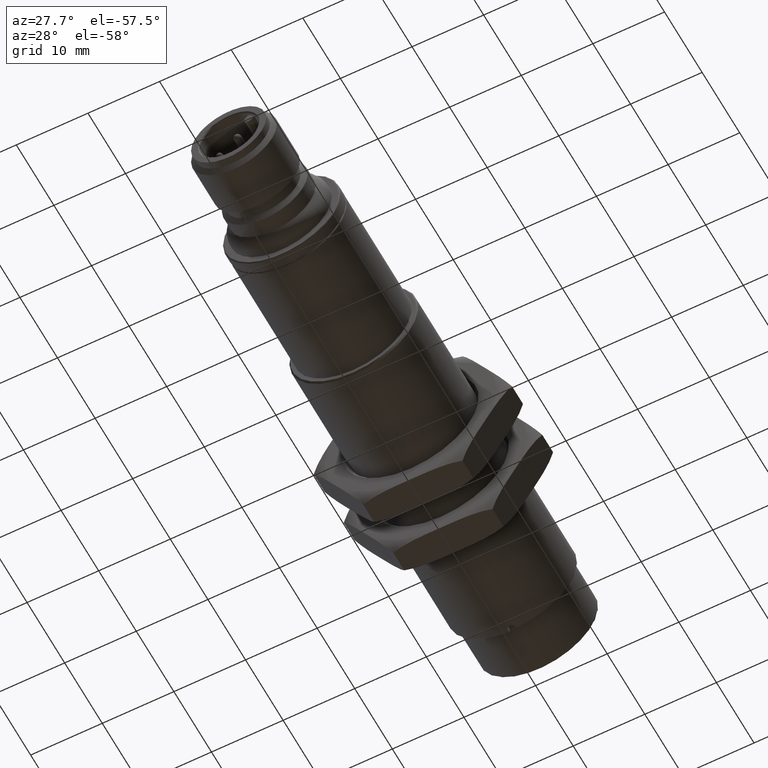
[diagram: clean part render]
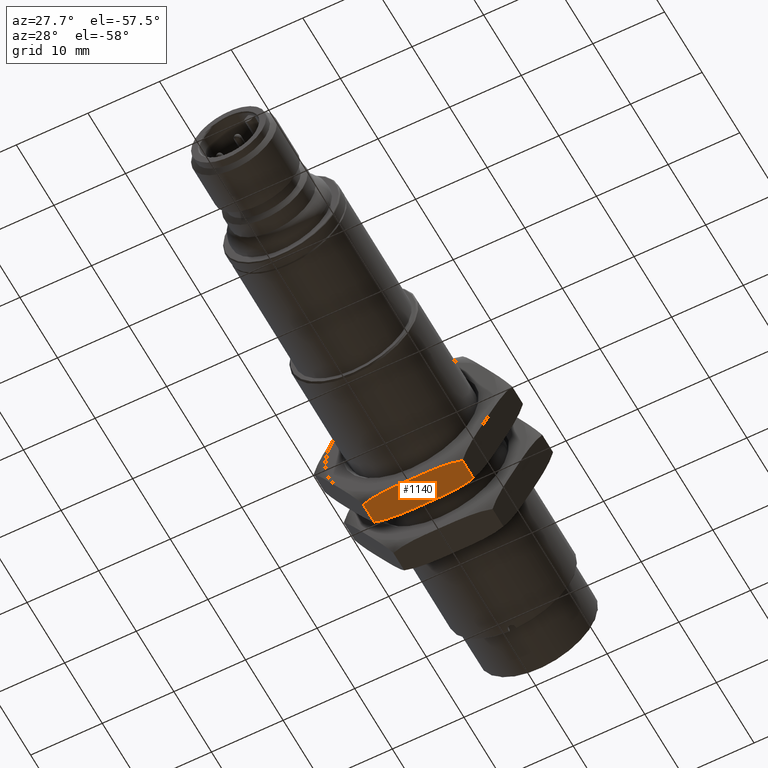
[diagram: same view with one face highlighted and labeled with its STEP entity id]
A machine part, auxiliary view. The second image highlights one B-rep face of the part: STEP entity #1140.
In plain terms, the highlighted planar face has unit normal (0, 0, 1).
Its self-contained STEP definition (entity closure, byte-faithful):
#7 = CARTESIAN_POINT ( 'NONE',  ( -0.04646973941410967313, 0.2687659276098816052, -0.4758734118880949548 ) ) ;
#63 = B_SPLINE_CURVE_WITH_KNOTS ( 'NONE', 3,
 ( #305, #3307, #2939, #4331, #2961, #3677, #2980, #4378, #1265, #4035, #3697, #259, #3004, #4399, #1670, #4157, #2382, #2022, #3823, #728, #704, #7, #2457 ),
 .UNSPECIFIED., .F., .F.,
 ( 4, 2, 2, 1, 2, 2, 2, 2, 2, 2, 2, 4 ),
 ( 0.000000000000000000, 0.1249999999999998890, 0.1874999999999998335, 0.2187500000000000278, 0.2343749999999998890, 0.2499999999999997780, 0.3749999999999995559, 0.4374999999999994449, 0.4687499999999993894, 0.4999999999999992784, 0.7499999999999995559, 1.000000000000000000 ),
 .UNSPECIFIED. ) ;
#131 = B_SPLINE_CURVE_WITH_KNOTS ( 'NONE', 3,
 ( #570, #1925, #3313, #1250, #226, #2636, #1045, #2323, #3126, #2757, #4121, #1310, #2416, #3419, #1375, #3767, #1654, #4473, #959, #710, #3722 ),
 .UNSPECIFIED., .F., .F.,
 ( 4, 2, 2, 2, 2, 2, 2, 1, 2, 2, 4 ),
 ( 0.000000000000000000, 0.2499999999999986122, 0.3749999999999978351, 0.4374999999999973910, 0.4999999999999970024, 0.6249999999999962252, 0.6874999999999958922, 0.7187499999999956701, 0.7343749999999957812, 0.7499999999999958922, 1.000000000000000000 ),
 .UNSPECIFIED. ) ;
#163 = ORIENTED_EDGE ( 'NONE', *, *, #1537, .F. ) ;
#181 = CARTESIAN_POINT ( 'NONE',  ( -0.06709584475610130827, 0.4261487126088744359, -0.4758734972580100364 ) ) ;
#226 = CARTESIAN_POINT ( 'NONE',  ( 0.1086588139046280738, 0.2694436107210309017, -0.4758707113770376806 ) ) ;
#234 = CARTESIAN_POINT ( 'NONE',  ( 0.1606657604758405800, 0.4232523728152694509, -0.4758724957003556133 ) ) ;
#259 = CARTESIAN_POINT ( 'NONE',  ( -0.1918098235597389123, 0.2743750452039738774, -0.4758702141019756082 ) ) ;
#271 = LINE ( 'NONE', #4345, #2366 ) ;
#305 = CARTESIAN_POINT ( 'NONE',  ( -0.2727639067037578857, 0.2906373679305283564, -0.4758734118880952879 ) ) ;
#415 = VECTOR ( 'NONE', #4177, 39.37007874015748143 ) ;
#472 = VERTEX_POINT ( 'NONE', #2522 ) ;
#526 = CARTESIAN_POINT ( 'NONE',  ( -0.02567950825656244510, 0.4262216651952197566, -0.4758734118880952879 ) ) ;
#532 = CARTESIAN_POINT ( 'NONE',  ( 0.2330594514784427029, 0.4143534328530462663, -0.4758707513784913856 ) ) ;
#546 = CARTESIAN_POINT ( 'NONE',  ( -0.2727639067037574971, 0.4043256474992811267, -0.4758734118880952879 ) ) ;
#570 = CARTESIAN_POINT ( 'NONE',  ( 0.02567950825658346647, 0.2687413502345897820, -0.4758734118880952879 ) ) ;
#575 = FACE_OUTER_BOUND ( 'NONE', #1196, .T. ) ;
#585 = EDGE_CURVE ( 'NONE', #2958, #1976, #1462, .T. ) ;
#614 = VERTEX_POINT ( 'NONE', #3604 ) ;
#634 = CARTESIAN_POINT ( 'NONE',  ( -0.2727639067037578857, 0.2687413502345897820, -0.4758734118880952879 ) ) ;
#678 = EDGE_CURVE ( 'NONE', #2058, #2958, #1011, .T. ) ;
#704 = CARTESIAN_POINT ( 'NONE',  ( -0.06711319420462699692, 0.2688141648581643950, -0.4758733249428757639 ) ) ;
#710 = CARTESIAN_POINT ( 'NONE',  ( 0.2534592381980899645, 0.2845092672232170661, -0.4758734118880955655 ) ) ;
#728 = CARTESIAN_POINT ( 'NONE',  ( -0.1087806650677682757, 0.2693836662093226364, -0.4758734988333150895 ) ) ;
#749 = CARTESIAN_POINT ( 'NONE',  ( -0.02567950825656244510, 0.4262216651952197566, -0.4758734118880952879 ) ) ;
#808 = CARTESIAN_POINT ( 'NONE',  ( 0.1918098235596982781, 0.4205879702258214503, -0.4758702141020457188 ) ) ;
#851 = CARTESIAN_POINT ( 'NONE',  ( -0.1913899664294545777, 0.4205747950100678367, -0.4758709107747379763 ) ) ;
#857 = CARTESIAN_POINT ( 'NONE',  ( 0.2214053349003846927, 0.4164412716387022040, -0.4758726714343453623 ) ) ;
#875 = CARTESIAN_POINT ( 'NONE',  ( -0.2330192571571119697, 0.4148174332184160762, -0.4758733120149470364 ) ) ;
#903 = CARTESIAN_POINT ( 'NONE',  ( 0.2381720422805057580, 0.4133273894542619509, -0.4758701223751497511 ) ) ;
#922 = CARTESIAN_POINT ( 'NONE',  ( -0.1604643549079249887, 0.4233205354464166792, -0.4758733673994327562 ) ) ;
#959 = CARTESIAN_POINT ( 'NONE',  ( 0.2330192571556768677, 0.2801455822110985316, -0.4758733120146942386 ) ) ;
#994 = LINE ( 'NONE', #4092, #415 ) ;
#1011 = LINE ( 'NONE', #1724, #3458 ) ;
#1045 = CARTESIAN_POINT ( 'NONE',  ( 0.1293281229903242291, 0.2700890065678204222, -0.4758712137285325272 ) ) ;
#1140 = ADVANCED_FACE ( 'NONE', ( #575 ), #1212, .F. ) ;
#1145 = ORIENTED_EDGE ( 'NONE', *, *, #585, .F. ) ;
#1148 = CARTESIAN_POINT ( 'NONE',  ( 0.06711319420636510658, 0.4261488505716382602, -0.4758733249426469469 ) ) ;
#1150 = EDGE_CURVE ( 'NONE', #472, #3288, #271, .T. ) ;
#1196 = EDGE_LOOP ( 'NONE', ( #163, #1387, #1145, #1218, #3780, #1955, #2406, #3909 ) ) ;
#1212 = PLANE ( 'NONE',  #3971 ) ;
#1213 = CARTESIAN_POINT ( 'NONE',  ( 0.2631880547543332116, 0.4073654192046161082, -0.4758734118880944552 ) ) ;
#1214 = LINE ( 'NONE', #2908, #1898 ) ;
#1218 = ORIENTED_EDGE ( 'NONE', *, *, #678, .F. ) ;
#1250 = CARTESIAN_POINT ( 'NONE',  ( 0.09830553385956551649, 0.2692403075970751236, -0.4758733692030945872 ) ) ;
#1258 = CARTESIAN_POINT ( 'NONE',  ( -0.02567950825657815128, 0.2687413502345897820, -0.4758734118880952879 ) ) ;
#1265 = CARTESIAN_POINT ( 'NONE',  ( -0.2148472301007323670, 0.2774815356313294346, -0.4758733546107024037 ) ) ;
#1276 = DIRECTION ( 'NONE',  ( 0.000000000000000000, 1.000000000000000000, 0.000000000000000000 ) ) ;
#1310 = CARTESIAN_POINT ( 'NONE',  ( 0.1862699493225018765, 0.2738468278922197574, -0.4758703244351742967 ) ) ;
#1375 = CARTESIAN_POINT ( 'NONE',  ( 0.2028510139626773234, 0.2757750787315870755, -0.4758727133404214160 ) ) ;
#1387 = ORIENTED_EDGE ( 'NONE', *, *, #4184, .T. ) ;
#1436 = EDGE_CURVE ( 'NONE', #614, #2058, #131, .T. ) ;
#1462 = B_SPLINE_CURVE_WITH_KNOTS ( 'NONE', 3,
 ( #4003, #1213, #2881, #903, #532, #1932, #857, #3229, #1550, #3912, #3322, #808, #1911, #3298, #3276, #234, #1599, #1504, #2930, #4249, #1148, #1527, #2174 ),
 .UNSPECIFIED., .F., .F.,
 ( 4, 2, 2, 1, 2, 2, 2, 2, 2, 2, 2, 4 ),
 ( 0.000000000000000000, 0.1250000000000014710, 0.1875000000000024980, 0.2187500000000031364, 0.2343750000000034972, 0.2500000000000038858, 0.3750000000000041633, 0.4375000000000041633, 0.4687500000000038858, 0.5000000000000036637, 0.7500000000000017764, 1.000000000000000000 ),
 .UNSPECIFIED. ) ;
#1496 = CARTESIAN_POINT ( 'NONE',  ( -0.04645346502616904544, 0.4261971070588548849, -0.4758734118880948438 ) ) ;
#1504 = CARTESIAN_POINT ( 'NONE',  ( 0.1527479835564067578, 0.4237518973278183165, -0.4758734230892054384 ) ) ;
#1527 = CARTESIAN_POINT ( 'NONE',  ( 0.04646973941583536910, 0.4261970878199257684, -0.4758734118880945108 ) ) ;
#1537 = EDGE_CURVE ( 'NONE', #1775, #3288, #3907, .T. ) ;
#1545 = CARTESIAN_POINT ( 'NONE',  ( -0.2103806306954447702, 0.4181464275075642001, -0.4758734181301662036 ) ) ;
#1550 = CARTESIAN_POINT ( 'NONE',  ( 0.2148472301006681129, 0.4174814797984941483, -0.4758733546106901358 ) ) ;
#1599 = CARTESIAN_POINT ( 'NONE',  ( 0.1554226949836862992, 0.4235910941522424422, -0.4758731741822120331 ) ) ;
#1621 = DIRECTION ( 'NONE',  ( 1.000000000000000000, 0.000000000000000000, 0.000000000000000000 ) ) ;
#1654 = CARTESIAN_POINT ( 'NONE',  ( 0.2091848011543381847, 0.2766455155219632589, -0.4758733576903566576 ) ) ;
#1670 = CARTESIAN_POINT ( 'NONE',  ( -0.1632808797344250384, 0.2718911866283678092, -0.4758720663840215193 ) ) ;
#1703 = DIRECTION ( 'NONE',  ( 0.000000000000000000, 1.000000000000000000, 0.000000000000000000 ) ) ;
#1724 = CARTESIAN_POINT ( 'NONE',  ( 0.2727639067037633813, 0.2687413502345897820, -0.4758734118880952879 ) ) ;
#1775 = VERTEX_POINT ( 'NONE', #749 ) ;
#1834 = CARTESIAN_POINT ( 'NONE',  ( -0.1990362944278201152, 0.4196662969324371217, -0.4758720769552841623 ) ) ;
#1883 = CARTESIAN_POINT ( 'NONE',  ( -0.2091848011542673802, 0.4183174999078652645, -0.4758733576903261819 ) ) ;
#1898 = VECTOR ( 'NONE', #2293, 39.37007874015748143 ) ;
#1911 = CARTESIAN_POINT ( 'NONE',  ( 0.1763008073991605140, 0.4220597955814024971, -0.4758702682893032887 ) ) ;
#1925 = CARTESIAN_POINT ( 'NONE',  ( 0.04645346502553155538, 0.2687659083709538210, -0.4758734118880953989 ) ) ;
#1932 = CARTESIAN_POINT ( 'NONE',  ( 0.2253044169159937327, 0.4157663482224663865, -0.4758719944933004209 ) ) ;
#1955 = ORIENTED_EDGE ( 'NONE', *, *, #2646, .F. ) ;
#1976 = VERTEX_POINT ( 'NONE', #2408 ) ;
#2022 = CARTESIAN_POINT ( 'NONE',  ( -0.1527479835566992183, 0.2712111181020058215, -0.4758734230891949468 ) ) ;
#2058 = VERTEX_POINT ( 'NONE', #3782 ) ;
#2174 = CARTESIAN_POINT ( 'NONE',  ( 0.02567950825658346647, 0.4262216651952197566, -0.4758734118880952879 ) ) ;
#2217 = CARTESIAN_POINT ( 'NONE',  ( -0.1447435290440798050, 0.4242003563957161272, -0.4758734341324250550 ) ) ;
#2246 = CARTESIAN_POINT ( 'NONE',  ( -0.1086588139033289879, 0.4255194047087964004, -0.4758707113771589725 ) ) ;
#2293 = DIRECTION ( 'NONE',  ( 1.000000000000000000, 0.000000000000000000, 0.000000000000000000 ) ) ;
#2323 = CARTESIAN_POINT ( 'NONE',  ( 0.1396552881086004783, 0.2705186120256313220, -0.4758725755939820501 ) ) ;
#2366 = VECTOR ( 'NONE', #1276, 39.37007874015748143 ) ;
#2382 = CARTESIAN_POINT ( 'NONE',  ( -0.1554226949836959859, 0.2713719212775639322, -0.4758731741821914940 ) ) ;
#2406 = ORIENTED_EDGE ( 'NONE', *, *, #3325, .F. ) ;
#2408 = CARTESIAN_POINT ( 'NONE',  ( 0.02567950825658346647, 0.4262216651952197566, -0.4758734118880952879 ) ) ;
#2416 = CARTESIAN_POINT ( 'NONE',  ( 0.1913899664298047143, 0.2743882204198307972, -0.4758709107749228839 ) ) ;
#2457 = CARTESIAN_POINT ( 'NONE',  ( -0.02567950825657815128, 0.2687413502345897820, -0.4758734118880952879 ) ) ;
#2522 = CARTESIAN_POINT ( 'NONE',  ( -0.2727639067037578857, 0.2906373679305283564, -0.4758734118880952879 ) ) ;
#2545 = VERTEX_POINT ( 'NONE', #1258 ) ;
#2636 = CARTESIAN_POINT ( 'NONE',  ( 0.1241639488626014309, 0.2699076292286865519, -0.4758707068571174092 ) ) ;
#2638 = CARTESIAN_POINT ( 'NONE',  ( -0.09830553385869766903, 0.4257227078327428527, -0.4758733692031376084 ) ) ;
#2646 = EDGE_CURVE ( 'NONE', #2545, #614, #1214, .T. ) ;
#2757 = CARTESIAN_POINT ( 'NONE',  ( 0.1604643549081689602, 0.2716424799834347703, -0.4758733673995935720 ) ) ;
#2881 = CARTESIAN_POINT ( 'NONE',  ( 0.2533270605884538340, 0.4099721428450868732, -0.4758701013983908656 ) ) ;
#2899 = CARTESIAN_POINT ( 'NONE',  ( -0.1708411760987296468, 0.4225726599038197029, -0.4758703086209390976 ) ) ;
#2908 = CARTESIAN_POINT ( 'NONE',  ( -0.2727639067037578857, 0.2687413502345897820, -0.4758734118880952879 ) ) ;
#2930 = CARTESIAN_POINT ( 'NONE',  ( 0.1294572635640887370, 0.4250596107137024071, -0.4758733222792037032 ) ) ;
#2939 = CARTESIAN_POINT ( 'NONE',  ( -0.2533270605888843230, 0.2849908725848436242, -0.4758701013984174000 ) ) ;
#2958 = VERTEX_POINT ( 'NONE', #3926 ) ;
#2961 = CARTESIAN_POINT ( 'NONE',  ( -0.2330594514788338623, 0.2806095825768581964, -0.4758707513785392362 ) ) ;
#2969 = CARTESIAN_POINT ( 'NONE',  ( -0.1862699493221239566, 0.4211161875376813746, -0.4758703244349665185 ) ) ;
#2980 = CARTESIAN_POINT ( 'NONE',  ( -0.2214053349005989935, 0.2785217437911549632, -0.4758726714343794462 ) ) ;
#3004 = CARTESIAN_POINT ( 'NONE',  ( -0.1763008073992020919, 0.2729032198483948291, -0.4758702682892342328 ) ) ;
#3126 = CARTESIAN_POINT ( 'NONE',  ( 0.1447435290439758049, 0.2707626590340733719, -0.4758734341323465622 ) ) ;
#3229 = CARTESIAN_POINT ( 'NONE',  ( 0.2174746463075402647, 0.4170712351212039759, -0.4758731365352469322 ) ) ;
#3246 = CARTESIAN_POINT ( 'NONE',  ( -0.2534592381995584010, 0.4104537482061248466, -0.4758734118880945108 ) ) ;
#3269 = CARTESIAN_POINT ( 'NONE',  ( -0.1396552881078329533, 0.4244444034041946479, -0.4758725755941042856 ) ) ;
#3276 = CARTESIAN_POINT ( 'NONE',  ( 0.1632808797343981988, 0.4230718288014346240, -0.4758720663840668719 ) ) ;
#3288 = VERTEX_POINT ( 'NONE', #4073 ) ;
#3298 = CARTESIAN_POINT ( 'NONE',  ( 0.1711076652134170539, 0.4224937496687087846, -0.4758708783261780817 ) ) ;
#3307 = CARTESIAN_POINT ( 'NONE',  ( -0.2631880547546183169, 0.2875975962252859675, -0.4758734118880956210 ) ) ;
#3313 = CARTESIAN_POINT ( 'NONE',  ( 0.06709584475442005591, 0.2688143028209184493, -0.4758734972580970224 ) ) ;
#3322 = CARTESIAN_POINT ( 'NONE',  ( 0.2020562668473204204, 0.4193804421799640636, -0.4758733634185502437 ) ) ;
#3325 = EDGE_CURVE ( 'NONE', #472, #2545, #63, .T. ) ;
#3365 = DIRECTION ( 'NONE',  ( 0.000000000000000000, 0.000000000000000000, 1.000000000000000000 ) ) ;
#3419 = CARTESIAN_POINT ( 'NONE',  ( 0.1990362944280794633, 0.2752967184974415282, -0.4758720769554142249 ) ) ;
#3458 = VECTOR ( 'NONE', #1703, 39.37007874015748143 ) ;
#3597 = CARTESIAN_POINT ( 'NONE',  ( -0.1293281229891277417, 0.4248740088620113764, -0.4758712137286980060 ) ) ;
#3604 = CARTESIAN_POINT ( 'NONE',  ( 0.02567950825658346647, 0.2687413502345897820, -0.4758734118880952879 ) ) ;
#3621 = CARTESIAN_POINT ( 'NONE',  ( -0.2066529976286469172, 0.4186709843868844927, -0.4758731519058304604 ) ) ;
#3677 = CARTESIAN_POINT ( 'NONE',  ( -0.2253044169162755905, 0.2791966672074081002, -0.4758719944933407775 ) ) ;
#3697 = CARTESIAN_POINT ( 'NONE',  ( -0.2020562668473450951, 0.2755825732498338176, -0.4758733634185028372 ) ) ;
#3722 = CARTESIAN_POINT ( 'NONE',  ( 0.2727639067037633813, 0.2906373679305283564, -0.4758734118880952879 ) ) ;
#3767 = CARTESIAN_POINT ( 'NONE',  ( 0.2066529976287724280, 0.2762920310429594628, -0.4758731519058886916 ) ) ;
#3780 = ORIENTED_EDGE ( 'NONE', *, *, #1436, .F. ) ;
#3782 = CARTESIAN_POINT ( 'NONE',  ( 0.2727639067037633813, 0.2906373679305283564, -0.4758734118880952879 ) ) ;
#3823 = CARTESIAN_POINT ( 'NONE',  ( -0.1294572635617016187, 0.2699034047159891148, -0.4758733222792927986 ) ) ;
#3907 = B_SPLINE_CURVE_WITH_KNOTS ( 'NONE', 3,
 ( #526, #1496, #181, #2638, #2246, #3953, #3597, #3269, #2217, #922, #2899, #2969, #851, #1834, #4291, #3621, #1883, #1545, #875, #3246, #546 ),
 .UNSPECIFIED., .F., .F.,
 ( 4, 2, 2, 2, 2, 2, 2, 1, 2, 2, 4 ),
 ( 0.000000000000000000, 0.2499999999999984457, 0.3749999999999978351, 0.4374999999999976130, 0.4999999999999974465, 0.6249999999999973355, 0.6874999999999974465, 0.7187499999999976685, 0.7343749999999976685, 0.7499999999999976685, 1.000000000000000000 ),
 .UNSPECIFIED. ) ;
#3909 = ORIENTED_EDGE ( 'NONE', *, *, #1150, .T. ) ;
#3912 = CARTESIAN_POINT ( 'NONE',  ( 0.2134785542346128995, 0.4176893597794903989, -0.4758734179467876135 ) ) ;
#3926 = CARTESIAN_POINT ( 'NONE',  ( 0.2727639067037637699, 0.4043256474992811267, -0.4758734118880945108 ) ) ;
#3953 = CARTESIAN_POINT ( 'NONE',  ( -0.1241639488612990283, 0.4250553862011454687, -0.4758707068572810006 ) ) ;
#3971 = AXIS2_PLACEMENT_3D ( 'NONE', #634, #3365, #1621 ) ;
#4003 = CARTESIAN_POINT ( 'NONE',  ( 0.2727639067037637699, 0.4043256474992811267, -0.4758734118880945108 ) ) ;
#4035 = CARTESIAN_POINT ( 'NONE',  ( -0.2134785542346040177, 0.2772736556503201388, -0.4758734179467939973 ) ) ;
#4073 = CARTESIAN_POINT ( 'NONE',  ( -0.2727639067037574971, 0.4043256474992811267, -0.4758734118880952879 ) ) ;
#4092 = CARTESIAN_POINT ( 'NONE',  ( -0.2727639067037578857, 0.4262216651952197566, -0.4758734118880952879 ) ) ;
#4121 = CARTESIAN_POINT ( 'NONE',  ( 0.1708411760991007666, 0.2723903555260680509, -0.4758703086211615862 ) ) ;
#4157 = CARTESIAN_POINT ( 'NONE',  ( -0.1606657604758621460, 0.2717106426145344256, -0.4758724957003176992 ) ) ;
#4177 = DIRECTION ( 'NONE',  ( 1.000000000000000000, 0.000000000000000000, 0.000000000000000000 ) ) ;
#4184 = EDGE_CURVE ( 'NONE', #1775, #1976, #994, .T. ) ;
#4249 = CARTESIAN_POINT ( 'NONE',  ( 0.1087806650660419622, 0.4255793492204939521, -0.4758734988335424076 ) ) ;
#4291 = CARTESIAN_POINT ( 'NONE',  ( -0.2028510139624764286, 0.4191879366982779187, -0.4758727133403241050 ) ) ;
#4331 = CARTESIAN_POINT ( 'NONE',  ( -0.2381720422809343596, 0.2816356259756557234, -0.4758701223751947706 ) ) ;
#4345 = CARTESIAN_POINT ( 'NONE',  ( -0.2727639067037578857, 0.2687413502345897820, -0.4758734118880952879 ) ) ;
#4378 = CARTESIAN_POINT ( 'NONE',  ( -0.2174746463076671077, 0.2778917803086335958, -0.4758731365352685816 ) ) ;
#4399 = CARTESIAN_POINT ( 'NONE',  ( -0.1711076652134552734, 0.2724692657610902069, -0.4758708783261154651 ) ) ;
#4473 = CARTESIAN_POINT ( 'NONE',  ( 0.2103806306955444960, 0.2768165879222645454, -0.4758734181301832455 ) ) ;